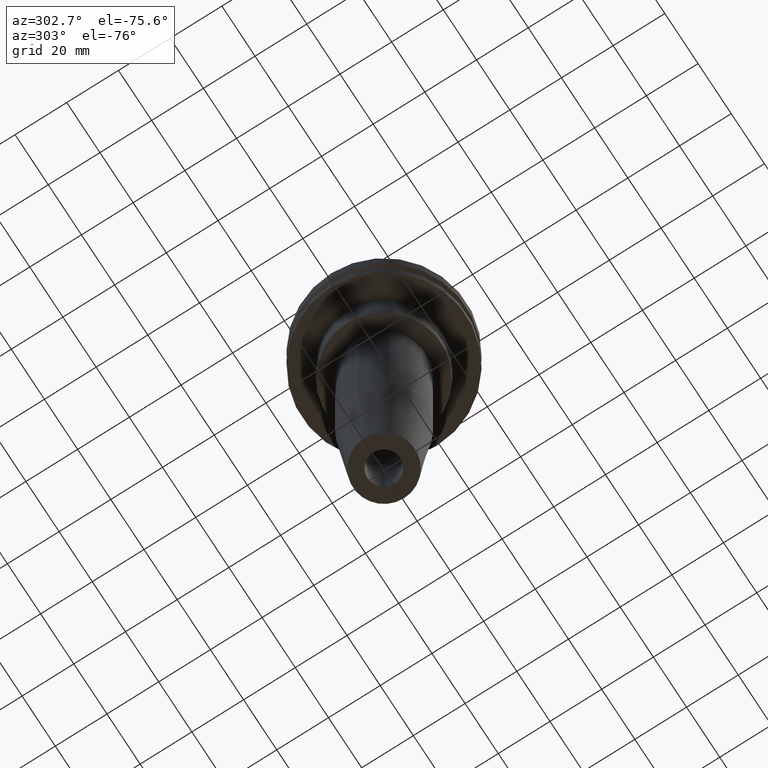
[diagram: clean part render]
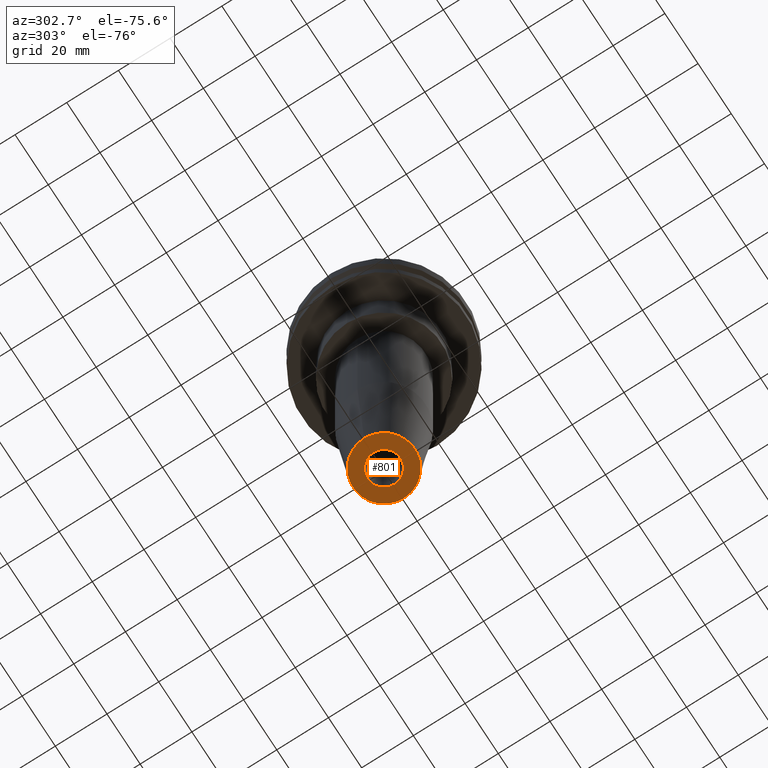
[diagram: same view with one face highlighted and labeled with its STEP entity id]
A machine part, auxiliary view. The second image highlights one B-rep face of the part: STEP entity #801.
In plain terms, the highlighted planar face has unit normal (0, -0, 1).
Its self-contained STEP definition (entity closure, byte-faithful):
#26 = ORIENTED_EDGE ( 'NONE', *, *, #437, .T. ) ;
#60 = VERTEX_POINT ( 'NONE', #457 ) ;
#72 = EDGE_CURVE ( 'NONE', #149, #145, #261, .T. ) ;
#90 = FACE_BOUND ( 'NONE', #716, .T. ) ;
#96 = DIRECTION ( 'NONE',  ( -0.000000000000000000, -0.000000000000000000, 1.000000000000000000 ) ) ;
#121 = AXIS2_PLACEMENT_3D ( 'NONE', #143, #147, #484 ) ;
#143 = CARTESIAN_POINT ( 'NONE',  ( 0.000000000000000000, 0.000000000000000000, -152.4000000000000057 ) ) ;
#145 = VERTEX_POINT ( 'NONE', #258 ) ;
#147 = DIRECTION ( 'NONE',  ( -0.000000000000000000, -0.000000000000000000, 1.000000000000000000 ) ) ;
#149 = VERTEX_POINT ( 'NONE', #320 ) ;
#162 = ORIENTED_EDGE ( 'NONE', *, *, #628, .F. ) ;
#172 = EDGE_LOOP ( 'NONE', ( #331, #162 ) ) ;
#179 = DIRECTION ( 'NONE',  ( 1.000000000000000000, 0.000000000000000000, 0.000000000000000000 ) ) ;
#223 = CARTESIAN_POINT ( 'NONE',  ( 0.000000000000000000, 12.00000000000000000, -152.4000000000000057 ) ) ;
#226 = DIRECTION ( 'NONE',  ( 1.000000000000000000, 0.000000000000000000, 0.000000000000000000 ) ) ;
#248 = ORIENTED_EDGE ( 'NONE', *, *, #768, .T. ) ;
#249 = DIRECTION ( 'NONE',  ( -0.000000000000000000, -0.000000000000000000, 1.000000000000000000 ) ) ;
#258 = CARTESIAN_POINT ( 'NONE',  ( -12.00000000000000000, 1.714505518806294638E-15, -152.4000000000000057 ) ) ;
#261 = CIRCLE ( 'NONE', #360, 12.00000000000000000 ) ;
#266 = DIRECTION ( 'NONE',  ( 1.000000000000000000, 0.000000000000000000, 0.000000000000000000 ) ) ;
#289 = DIRECTION ( 'NONE',  ( 1.000000000000000000, 0.000000000000000000, 0.000000000000000000 ) ) ;
#300 = FACE_OUTER_BOUND ( 'NONE', #172, .T. ) ;
#316 = CARTESIAN_POINT ( 'NONE',  ( 6.350000000000007638, 0.000000000000000000, -152.4000000000000057 ) ) ;
#320 = CARTESIAN_POINT ( 'NONE',  ( 12.00000000000000000, 0.000000000000000000, -152.4000000000000057 ) ) ;
#331 = ORIENTED_EDGE ( 'NONE', *, *, #72, .F. ) ;
#350 = CIRCLE ( 'NONE', #121, 6.350000000000007638 ) ;
#360 = AXIS2_PLACEMENT_3D ( 'NONE', #842, #249, #266 ) ;
#437 = EDGE_CURVE ( 'NONE', #60, #634, #850, .T. ) ;
#444 = CARTESIAN_POINT ( 'NONE',  ( 0.000000000000000000, 0.000000000000000000, -152.4000000000000057 ) ) ;
#452 = DIRECTION ( 'NONE',  ( -0.000000000000000000, -0.000000000000000000, 1.000000000000000000 ) ) ;
#457 = CARTESIAN_POINT ( 'NONE',  ( -6.350000000000007638, 7.776507174585703010E-16, -152.4000000000000057 ) ) ;
#482 = AXIS2_PLACEMENT_3D ( 'NONE', #444, #96, #289 ) ;
#484 = DIRECTION ( 'NONE',  ( 1.000000000000000000, 0.000000000000000000, 0.000000000000000000 ) ) ;
#586 = AXIS2_PLACEMENT_3D ( 'NONE', #223, #624, #226 ) ;
#624 = DIRECTION ( 'NONE',  ( 0.000000000000000000, -0.000000000000000000, 1.000000000000000000 ) ) ;
#628 = EDGE_CURVE ( 'NONE', #145, #149, #808, .T. ) ;
#634 = VERTEX_POINT ( 'NONE', #316 ) ;
#652 = AXIS2_PLACEMENT_3D ( 'NONE', #772, #452, #179 ) ;
#716 = EDGE_LOOP ( 'NONE', ( #248, #26 ) ) ;
#768 = EDGE_CURVE ( 'NONE', #634, #60, #350, .T. ) ;
#772 = CARTESIAN_POINT ( 'NONE',  ( 0.000000000000000000, 0.000000000000000000, -152.4000000000000057 ) ) ;
#801 = ADVANCED_FACE ( 'NONE', ( #300, #90 ), #828, .F. ) ;
#808 = CIRCLE ( 'NONE', #652, 12.00000000000000000 ) ;
#828 = PLANE ( 'NONE',  #586 ) ;
#842 = CARTESIAN_POINT ( 'NONE',  ( 0.000000000000000000, 0.000000000000000000, -152.4000000000000057 ) ) ;
#850 = CIRCLE ( 'NONE', #482, 6.350000000000007638 ) ;